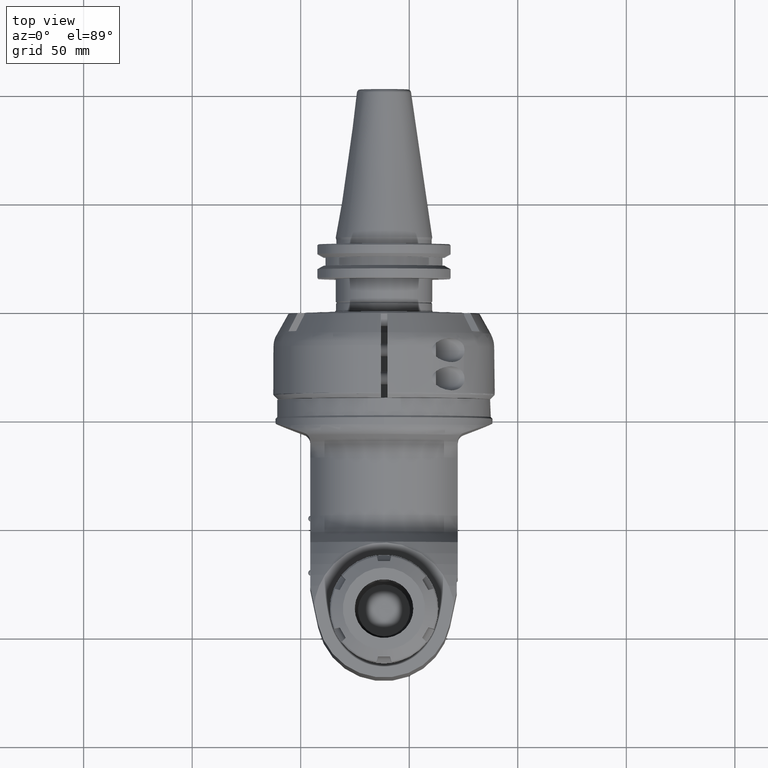
[diagram: clean part render]
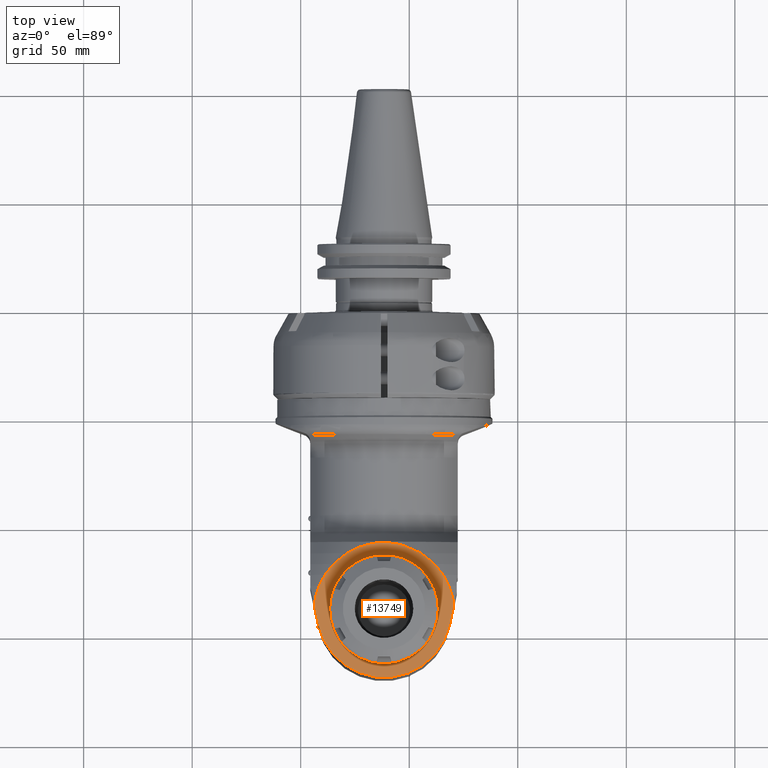
[diagram: same view with one face highlighted and labeled with its STEP entity id]
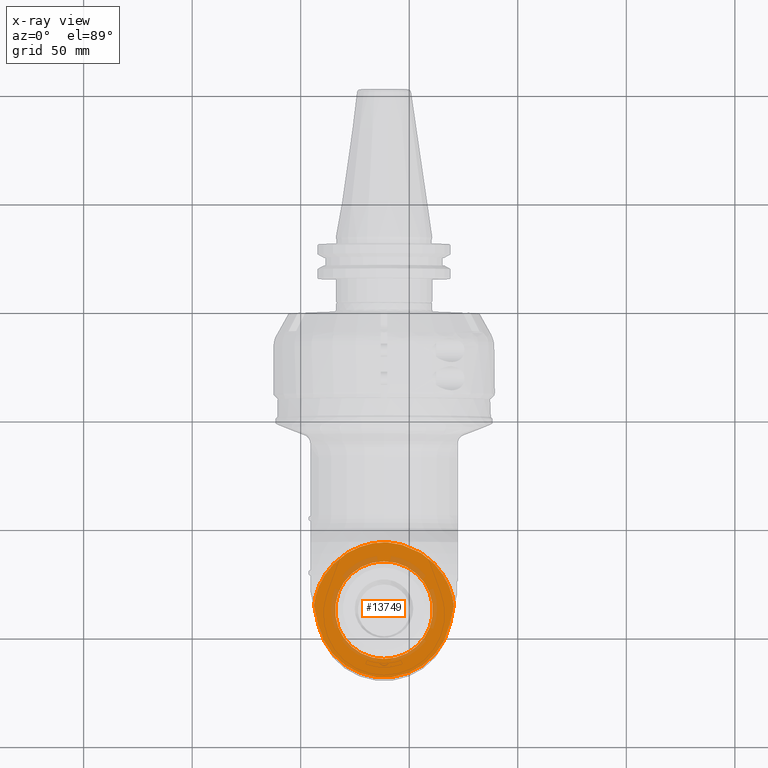
[diagram: x-ray of the same camera — body ghosted, the highlighted face saturated]
A machine part, top view. The second image highlights one B-rep face of the part: STEP entity #13749.
The next image is the same camera in x-ray: the body ghosted, the highlighted face saturated — about 15% of this face is hidden behind the body in this view.
In plain terms, the highlighted planar face has unit normal (0, -0, 1).
Its self-contained STEP definition (entity closure, byte-faithful):
#290=FACE_BOUND('',#3809,.T.);
#428=(
BOUNDED_CURVE()
B_SPLINE_CURVE(2,(#20880,#20881,#20882),.UNSPECIFIED.,.F.,.F.)
B_SPLINE_CURVE_WITH_KNOTS((3,3),(-4.03041954909849,-3.48086291521513),
 .UNSPECIFIED.)
CURVE()
GEOMETRIC_REPRESENTATION_ITEM()
RATIONAL_B_SPLINE_CURVE((1.00758485447309,1.00783047752792,1.00786810102983))
REPRESENTATION_ITEM('')
);
#429=(
BOUNDED_CURVE()
B_SPLINE_CURVE(2,(#20885,#20886,#20887),.UNSPECIFIED.,.F.,.F.)
B_SPLINE_CURVE_WITH_KNOTS((3,3),(3.20708637423307,3.62307889991496),
 .UNSPECIFIED.)
CURVE()
GEOMETRIC_REPRESENTATION_ITEM()
RATIONAL_B_SPLINE_CURVE((1.00191677272158,1.00192045673845,1.00189284716092))
REPRESENTATION_ITEM('')
);
#430=(
BOUNDED_CURVE()
B_SPLINE_CURVE(2,(#20894,#20895,#20896),.UNSPECIFIED.,.F.,.F.)
B_SPLINE_CURVE_WITH_KNOTS((3,3),(-3.62307889962054,-3.20708637423307),
 .UNSPECIFIED.)
CURVE()
GEOMETRIC_REPRESENTATION_ITEM()
RATIONAL_B_SPLINE_CURVE((1.00189284716096,1.00192045673845,1.00191677272158))
REPRESENTATION_ITEM('')
);
#431=(
BOUNDED_CURVE()
B_SPLINE_CURVE(2,(#20898,#20899,#20900),.UNSPECIFIED.,.F.,.F.)
B_SPLINE_CURVE_WITH_KNOTS((3,3),(-4.03041954098901,-3.48086291490175),
 .UNSPECIFIED.)
CURVE()
GEOMETRIC_REPRESENTATION_ITEM()
RATIONAL_B_SPLINE_CURVE((1.00758485448034,1.00783047752862,1.00786810102987))
REPRESENTATION_ITEM('')
);
#432=(
BOUNDED_CURVE()
B_SPLINE_CURVE(2,(#20902,#20903,#20904),.UNSPECIFIED.,.F.,.F.)
B_SPLINE_CURVE_WITH_KNOTS((3,3),(-4.59394021729852,-3.96599586059972),
 .UNSPECIFIED.)
CURVE()
GEOMETRIC_REPRESENTATION_ITEM()
RATIONAL_B_SPLINE_CURVE((1.01701935690756,1.01790904601756,1.01823752146191))
REPRESENTATION_ITEM('')
);
#433=(
BOUNDED_CURVE()
B_SPLINE_CURVE(2,(#20906,#20907,#20908),.UNSPECIFIED.,.F.,.F.)
B_SPLINE_CURVE_WITH_KNOTS((3,3),(-5.37266409936329,-4.60243898578531),
 .UNSPECIFIED.)
CURVE()
GEOMETRIC_REPRESENTATION_ITEM()
RATIONAL_B_SPLINE_CURVE((1.03008243753579,1.0326119867117,1.03379800662608))
REPRESENTATION_ITEM('')
);
#434=(
BOUNDED_CURVE()
B_SPLINE_CURVE(2,(#20910,#20911,#20912),.UNSPECIFIED.,.F.,.F.)
B_SPLINE_CURVE_WITH_KNOTS((3,3),(-6.41272143458017,-5.36587203961123),
 .UNSPECIFIED.)
CURVE()
GEOMETRIC_REPRESENTATION_ITEM()
RATIONAL_B_SPLINE_CURVE((1.05103849856685,1.05767011512766,1.06077643195962))
REPRESENTATION_ITEM('')
);
#435=(
BOUNDED_CURVE()
B_SPLINE_CURVE(2,(#20914,#20915,#20916),.UNSPECIFIED.,.F.,.F.)
B_SPLINE_CURVE_WITH_KNOTS((3,3),(6.38102259223995,12.5133383101449),
 .UNSPECIFIED.)
CURVE()
GEOMETRIC_REPRESENTATION_ITEM()
RATIONAL_B_SPLINE_CURVE((1.33365869793948,1.41222892327313,1.33365869794272))
REPRESENTATION_ITEM('')
);
#436=(
BOUNDED_CURVE()
B_SPLINE_CURVE(2,(#20918,#20919,#20920),.UNSPECIFIED.,.F.,.F.)
B_SPLINE_CURVE_WITH_KNOTS((3,3),(2.47400310159934,3.52086127836949),
 .UNSPECIFIED.)
CURVE()
GEOMETRIC_REPRESENTATION_ITEM()
RATIONAL_B_SPLINE_CURVE((1.05103468797916,1.05766659348954,1.06077321389078))
REPRESENTATION_ITEM('')
);
#437=(
BOUNDED_CURVE()
B_SPLINE_CURVE(2,(#20922,#20923,#20924),.UNSPECIFIED.,.F.,.F.)
B_SPLINE_CURVE_WITH_KNOTS((3,3),(2.47232019757052,3.24254735063466),
 .UNSPECIFIED.)
CURVE()
GEOMETRIC_REPRESENTATION_ITEM()
RATIONAL_B_SPLINE_CURVE((1.03008187879678,1.03261146724864,1.0337975267296))
REPRESENTATION_ITEM('')
);
#438=(
BOUNDED_CURVE()
B_SPLINE_CURVE(2,(#20925,#20926,#20927),.UNSPECIFIED.,.F.,.F.)
B_SPLINE_CURVE_WITH_KNOTS((3,3),(2.6029626360911,3.23090775455957),
 .UNSPECIFIED.)
CURVE()
GEOMETRIC_REPRESENTATION_ITEM()
RATIONAL_B_SPLINE_CURVE((1.01701917435142,1.01790887546296,1.01823736329818))
REPRESENTATION_ITEM('')
);
#768=LINE('',#20866,#1655);
#769=LINE('',#20892,#1656);
#1655=VECTOR('',#16386,8.87507655635602);
#1656=VECTOR('',#16399,8.87507655635602);
#2573=PLANE('',#14691);
#2941=FACE_OUTER_BOUND('',#3808,.T.);
#3808=EDGE_LOOP('',(#9461,#9462,#9463,#9464,#9465,#9466,#9467,#9468,#9469,
#9470,#9471,#9472,#9473,#9474));
#3809=EDGE_LOOP('',(#9475));
#4802=CIRCLE('',#14692,31.);
#4803=CIRCLE('',#14693,22.5);
#5904=VERTEX_POINT('',#20863);
#5905=VERTEX_POINT('',#20865);
#5907=VERTEX_POINT('',#20877);
#5908=VERTEX_POINT('',#20879);
#5909=VERTEX_POINT('',#20889);
#5910=VERTEX_POINT('',#20891);
#5911=VERTEX_POINT('',#20893);
#5912=VERTEX_POINT('',#20897);
#5913=VERTEX_POINT('',#20901);
#5914=VERTEX_POINT('',#20905);
#5915=VERTEX_POINT('',#20909);
#5916=VERTEX_POINT('',#20913);
#5917=VERTEX_POINT('',#20917);
#5918=VERTEX_POINT('',#20921);
#5919=VERTEX_POINT('',#20928);
#7299=EDGE_CURVE('',#5905,#5904,#768,.T.);
#7303=EDGE_CURVE('',#5908,#5907,#428,.T.);
#7305=EDGE_CURVE('',#5905,#5907,#429,.T.);
#7306=EDGE_CURVE('',#5904,#5909,#4802,.T.);
#7307=EDGE_CURVE('',#5909,#5910,#769,.T.);
#7308=EDGE_CURVE('',#5911,#5910,#430,.T.);
#7309=EDGE_CURVE('',#5912,#5911,#431,.T.);
#7310=EDGE_CURVE('',#5913,#5912,#432,.T.);
#7311=EDGE_CURVE('',#5914,#5913,#433,.T.);
#7312=EDGE_CURVE('',#5915,#5914,#434,.T.);
#7313=EDGE_CURVE('',#5915,#5916,#435,.T.);
#7314=EDGE_CURVE('',#5916,#5917,#436,.T.);
#7315=EDGE_CURVE('',#5917,#5918,#437,.T.);
#7316=EDGE_CURVE('',#5918,#5908,#438,.T.);
#7317=EDGE_CURVE('',#5919,#5919,#4803,.T.);
#9461=ORIENTED_EDGE('',*,*,#7306,.T.);
#9462=ORIENTED_EDGE('',*,*,#7307,.T.);
#9463=ORIENTED_EDGE('',*,*,#7308,.F.);
#9464=ORIENTED_EDGE('',*,*,#7309,.F.);
#9465=ORIENTED_EDGE('',*,*,#7310,.F.);
#9466=ORIENTED_EDGE('',*,*,#7311,.F.);
#9467=ORIENTED_EDGE('',*,*,#7312,.F.);
#9468=ORIENTED_EDGE('',*,*,#7313,.T.);
#9469=ORIENTED_EDGE('',*,*,#7314,.T.);
#9470=ORIENTED_EDGE('',*,*,#7315,.T.);
#9471=ORIENTED_EDGE('',*,*,#7316,.T.);
#9472=ORIENTED_EDGE('',*,*,#7303,.T.);
#9473=ORIENTED_EDGE('',*,*,#7305,.F.);
#9474=ORIENTED_EDGE('',*,*,#7299,.T.);
#9475=ORIENTED_EDGE('',*,*,#7317,.T.);
#13749=ADVANCED_FACE('',(#2941,#290),#2573,.T.);
#14691=AXIS2_PLACEMENT_3D('',#20888,#16395,#16396);
#14692=AXIS2_PLACEMENT_3D('',#20890,#16397,#16398);
#14693=AXIS2_PLACEMENT_3D('',#20929,#16400,#16401);
#16386=DIRECTION('',(0.978147600733797,0.,0.207911690817799));
#16395=DIRECTION('center_axis',(0.,-1.,0.));
#16396=DIRECTION('ref_axis',(1.,0.,0.));
#16397=DIRECTION('center_axis',(0.,-1.,0.));
#16398=DIRECTION('ref_axis',(0.207911690816993,0.,-0.978147600733968));
#16399=DIRECTION('',(-0.978147600733797,0.,0.207911690817799));
#16400=DIRECTION('center_axis',(0.,1.,0.));
#16401=DIRECTION('ref_axis',(-1.,0.,0.));
#20863=CARTESIAN_POINT('',(284.5083594153,-49.,-30.32257562275));
#20865=CARTESIAN_POINT('',(275.8272245754,-49.,-32.16780779572));
#20866=CARTESIAN_POINT('',(275.8272245754,-49.,-32.16780779572));
#20877=CARTESIAN_POINT('',(271.759249419836,-49.0000000002981,-31.5146293898747));
#20879=CARTESIAN_POINT('',(266.7592493705,-49.0000000083841,-29.8533396467982));
#20880=CARTESIAN_POINT('Ctrl Pts',(266.759249364948,-49.,-29.8533396631987));
#20881=CARTESIAN_POINT('Ctrl Pts',(269.191571996042,-49.,-30.6776515802162));
#20882=CARTESIAN_POINT('Ctrl Pts',(271.759249419769,-49.,-31.5146293900795));
#20885=CARTESIAN_POINT('Ctrl Pts',(275.8272245754,-49.,-32.1678077957183));
#20886=CARTESIAN_POINT('Ctrl Pts',(273.772374781528,-49.,-31.8402240801089));
#20887=CARTESIAN_POINT('Ctrl Pts',(271.759249419725,-49.,-31.5146293905561));
#20888=CARTESIAN_POINT('Origin',(253.6737269458,-49.,-2.244324640789));
#20889=CARTESIAN_POINT('',(284.5083594153,-49.,30.32257562275));
#20890=CARTESIAN_POINT('Origin',(278.063097,-49.,0.));
#20891=CARTESIAN_POINT('',(275.8272245754,-49.,32.16780779572));
#20892=CARTESIAN_POINT('',(284.5083594153,-49.,30.32257562275));
#20893=CARTESIAN_POINT('',(271.7592494227,-49.,31.51462939104));
#20894=CARTESIAN_POINT('Ctrl Pts',(271.759249422575,-49.,31.514629391017));
#20895=CARTESIAN_POINT('Ctrl Pts',(273.772374782982,-49.,31.8402240803407));
#20896=CARTESIAN_POINT('Ctrl Pts',(275.8272245754,-49.,32.1678077957183));
#20897=CARTESIAN_POINT('',(266.759249435398,-48.9999999979614,29.8533396915202));
#20898=CARTESIAN_POINT('Ctrl Pts',(266.75924943675,-49.,29.8533396875324));
#20899=CARTESIAN_POINT('Ctrl Pts',(269.19157203532,-49.,30.6776515930374));
#20900=CARTESIAN_POINT('Ctrl Pts',(271.759249422697,-49.,31.514629391034));
#20901=CARTESIAN_POINT('',(261.759249673343,-48.9999999481181,27.1895796058645));
#20902=CARTESIAN_POINT('Ctrl Pts',(261.759249723115,-49.,27.1895795157774));
#20903=CARTESIAN_POINT('Ctrl Pts',(264.142505904143,-49.,28.5057265454367));
#20904=CARTESIAN_POINT('Ctrl Pts',(266.759249436299,-49.,29.8533396897723));
#20905=CARTESIAN_POINT('',(256.7592494227,-49.,23.20825135876));
#20906=CARTESIAN_POINT('Ctrl Pts',(256.759249422696,-49.,23.2082513587645));
#20907=CARTESIAN_POINT('Ctrl Pts',(259.061754535467,-49.,25.1660583058081));
#20908=CARTESIAN_POINT('Ctrl Pts',(261.759249705986,-49.,27.1895795623874));
#20909=CARTESIAN_POINT('',(251.7592494227,-49.,17.06560767263));
#20910=CARTESIAN_POINT('Ctrl Pts',(251.759249422662,-49.,17.0656076725935));
#20911=CARTESIAN_POINT('Ctrl Pts',(253.877944785256,-49.,20.0694406912642));
#20912=CARTESIAN_POINT('Ctrl Pts',(256.759249422692,-49.,23.2082513587661));
#20913=CARTESIAN_POINT('',(251.7592494227,-49.,-17.06560767264));
#20914=CARTESIAN_POINT('Ctrl Pts',(251.759249422844,-49.,17.0656076728981));
#20915=CARTESIAN_POINT('Ctrl Pts',(242.037427500105,-49.,3.32027738636498E-10));
#20916=CARTESIAN_POINT('Ctrl Pts',(251.75924942242,-49.,-17.0656076721535));
#20917=CARTESIAN_POINT('',(256.7592494227,-49.,-23.20825135876));
#20918=CARTESIAN_POINT('Ctrl Pts',(251.759249422667,-49.,-17.0656076726003));
#20919=CARTESIAN_POINT('Ctrl Pts',(253.877944785259,-49.,-20.0694406912677));
#20920=CARTESIAN_POINT('Ctrl Pts',(256.759249422692,-49.,-23.2082513587661));
#20921=CARTESIAN_POINT('',(261.759250614127,-48.9999997534539,-27.1895805665863));
#20922=CARTESIAN_POINT('Ctrl Pts',(256.759249422696,-49.,-23.2082513587645));
#20923=CARTESIAN_POINT('Ctrl Pts',(259.061754988826,-49.,-25.1660586912969));
#20924=CARTESIAN_POINT('Ctrl Pts',(261.759250769638,-49.,-27.1895803602834));
#20925=CARTESIAN_POINT('Ctrl Pts',(261.759250851057,-49.,-27.1895801386803));
#20926=CARTESIAN_POINT('Ctrl Pts',(264.142506491397,-49.,-28.5057268466921));
#20927=CARTESIAN_POINT('Ctrl Pts',(266.759249366808,-49.,-29.8533396539849));
#20928=CARTESIAN_POINT('',(255.563097,-49.,0.));
#20929=CARTESIAN_POINT('Origin',(278.063097,-49.,0.));